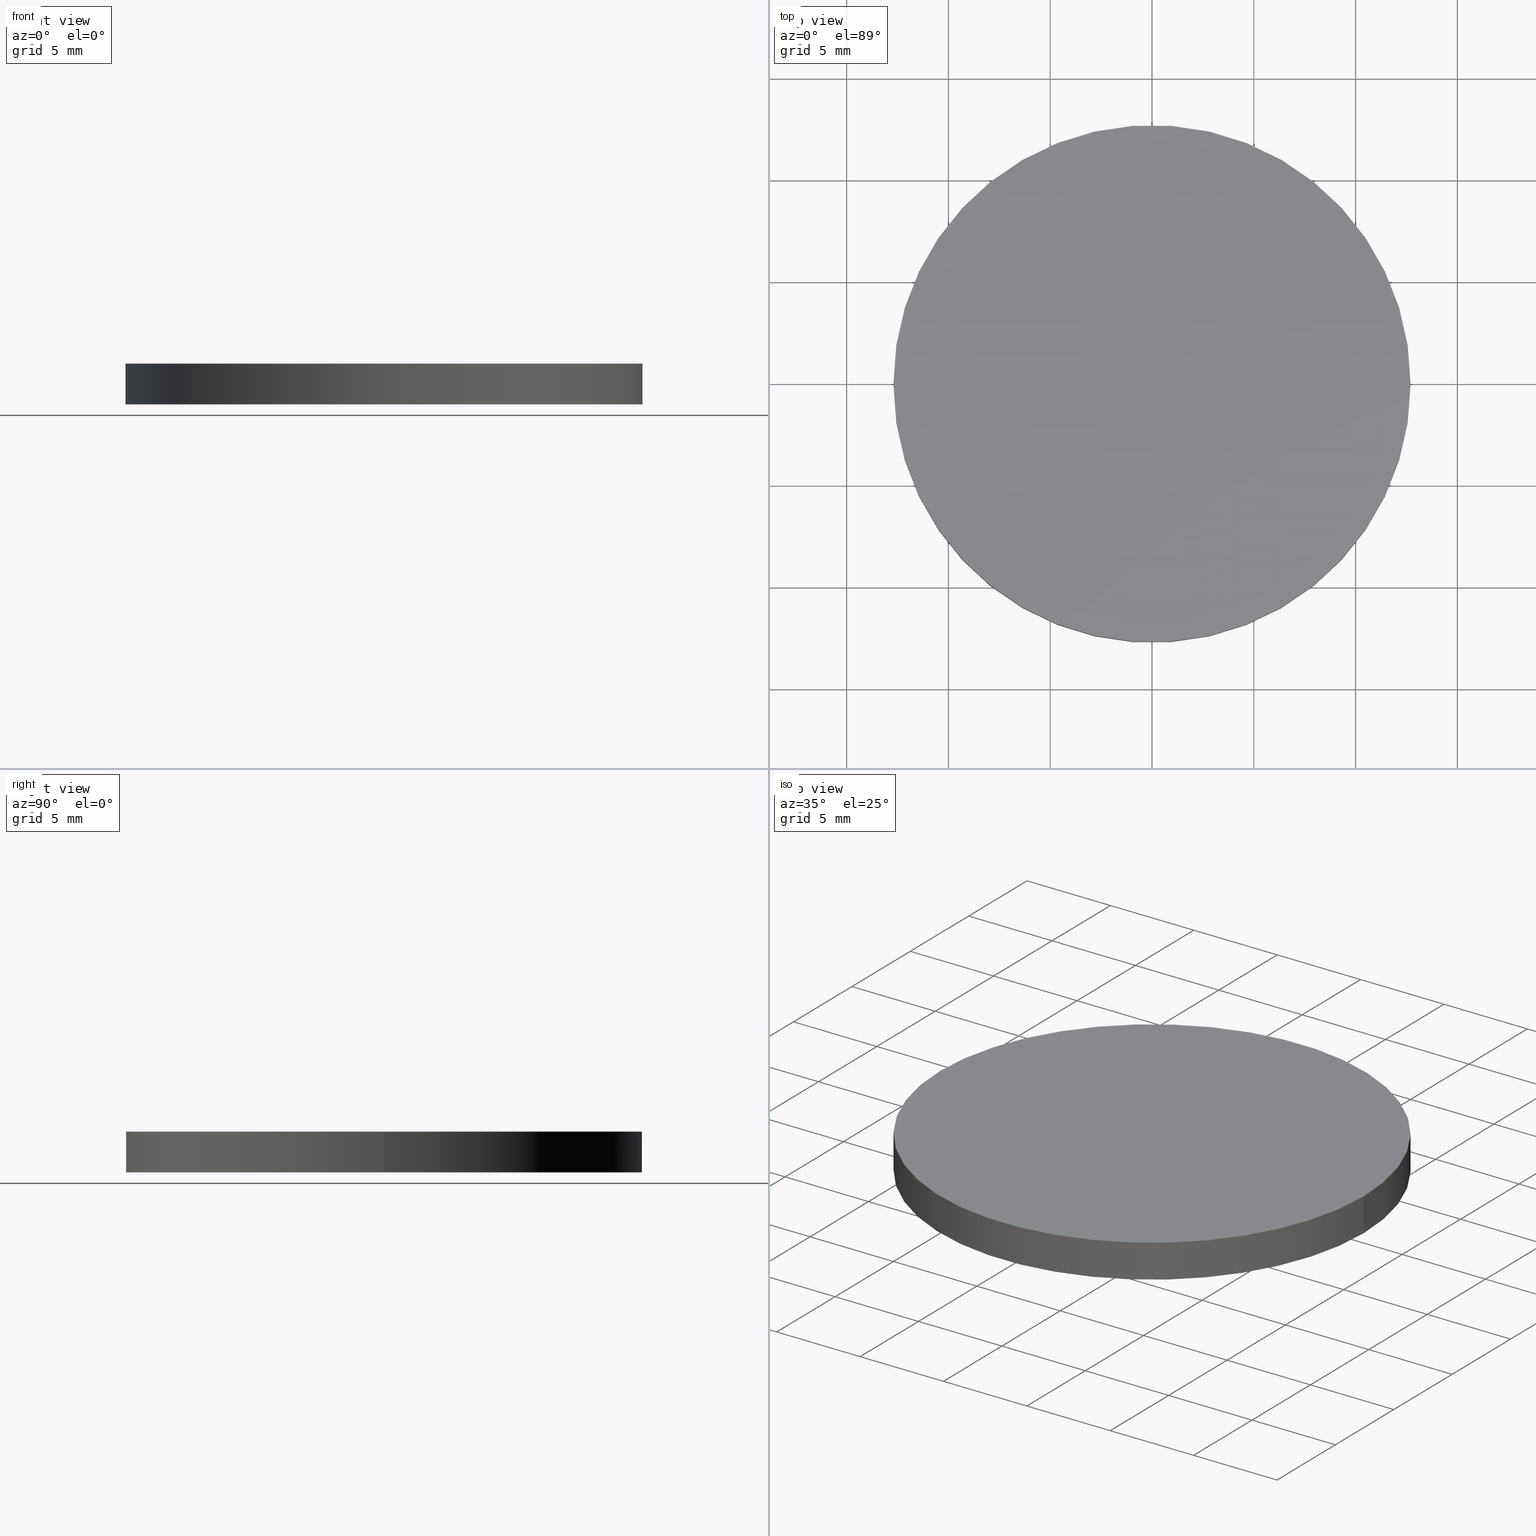
[diagram: canonical four-view strip — front | top / right | iso, engineering-drawing reading convention]
A machine part, canonical four-view strip (front | top / right | iso — engineering-drawing reading convention). The complete STEP part file that produces these views, byte-faithful:
ISO-10303-21;
HEADER;
FILE_DESCRIPTION (( 'STEP AP214' ),
    '1' );
FILE_NAME ('190166.STEP',
    '2019-07-18T08:32:23',
    ( 'user' ),
    ( '΢���й�' ),
    'SwSTEP 2.0',
    'SolidWorks 2016',
    '' );
FILE_SCHEMA (( 'AUTOMOTIVE_DESIGN' ));
ENDSEC;

DATA;
#1 = AXIS2_PLACEMENT_3D ( 'NONE', #58, #69, #83 ) ;
#2 = PRODUCT_DEFINITION_SHAPE ( 'NONE', 'NONE',  #122 ) ;
#3 = CLOSED_SHELL ( 'NONE', ( #131, #126, #105, #112 ) ) ;
#4 = UNCERTAINTY_MEASURE_WITH_UNIT (LENGTH_MEASURE( 1.000000000000000100E-005 ), #72, 'distance_accuracy_value', 'NONE');
#5 =( LENGTH_UNIT ( ) NAMED_UNIT ( * ) SI_UNIT ( .MILLI., .METRE. ) );
#6 = STYLED_ITEM ( 'NONE', ( #103 ), #20 ) ;
#7 = ORIENTED_EDGE ( 'NONE', *, *, #51, .T. ) ;
#8 = AXIS2_PLACEMENT_3D ( 'NONE', #13, #123, #49 ) ;
#9 = DIRECTION ( 'NONE',  ( 1.000000000000000000, 0.0000000000000000000, 0.0000000000000000000 ) ) ;
#10 = CARTESIAN_POINT ( 'NONE',  ( -12.69999999999999900, 0.0000000000000000000, 0.0000000000000000000 ) ) ;
#11 = CARTESIAN_POINT ( 'NONE',  ( 0.0000000000000000000, 0.0000000000000000000, 2.000000000000000000 ) ) ;
#12 =( NAMED_UNIT ( * ) PLANE_ANGLE_UNIT ( ) SI_UNIT ( $, .RADIAN. ) );
#13 = CARTESIAN_POINT ( 'NONE',  ( 0.0000000000000000000, 0.0000000000000000000, 0.0000000000000000000 ) ) ;
#14 = DIRECTION ( 'NONE',  ( -0.0000000000000000000, -0.0000000000000000000, -1.000000000000000000 ) ) ;
#15 = FACE_OUTER_BOUND ( 'NONE', #76, .T. ) ;
#16 = CARTESIAN_POINT ( 'NONE',  ( 0.0000000000000000000, 0.0000000000000000000, 2.000000000000000000 ) ) ;
#17 = CARTESIAN_POINT ( 'NONE',  ( 12.69999999999999900, 1.555301434917138400E-015, 2.000000000000000000 ) ) ;
#18 = EDGE_CURVE ( 'NONE', #66, #60, #74, .T. ) ;
#19 = DIRECTION ( 'NONE',  ( -1.000000000000000000, 0.0000000000000000000, 0.0000000000000000000 ) ) ;
#20 = MANIFOLD_SOLID_BREP ( '͹̨-����1', #3 ) ;
#21 = APPLICATION_CONTEXT ( 'automotive_design' ) ;
#22 = AXIS2_PLACEMENT_3D ( 'NONE', #11, #120, #129 ) ;
#23 = VERTEX_POINT ( 'NONE', #70 ) ;
#24 = CIRCLE ( 'NONE', #77, 12.69999999999999900 ) ;
#25 = EDGE_LOOP ( 'NONE', ( #119, #139 ) ) ;
#26 = PLANE ( 'NONE',  #1 ) ;
#27 = DIRECTION ( 'NONE',  ( 0.0000000000000000000, 0.0000000000000000000, 1.000000000000000000 ) ) ;
#28 = UNCERTAINTY_MEASURE_WITH_UNIT (LENGTH_MEASURE( 1.000000000000000100E-005 ), #5, 'distance_accuracy_value', 'NONE');
#29 = ORIENTED_EDGE ( 'NONE', *, *, #101, .T. ) ;
#30 = CIRCLE ( 'NONE', #88, 12.69999999999999900 ) ;
#31 = APPLICATION_PROTOCOL_DEFINITION ( 'draft international standard', 'automotive_design', 1998, #21 ) ;
#32 = DIRECTION ( 'NONE',  ( -0.0000000000000000000, -0.0000000000000000000, -1.000000000000000000 ) ) ;
#33 = CYLINDRICAL_SURFACE ( 'NONE', #89, 12.69999999999999900 ) ;
#34 =( NAMED_UNIT ( * ) PLANE_ANGLE_UNIT ( ) SI_UNIT ( $, .RADIAN. ) );
#35 = MECHANICAL_DESIGN_GEOMETRIC_PRESENTATION_REPRESENTATION (  '', ( #6 ), #71 ) ;
#36 = DIRECTION ( 'NONE',  ( 0.0000000000000000000, 0.0000000000000000000, 1.000000000000000000 ) ) ;
#37 = APPLICATION_CONTEXT ( 'automotive_design' ) ;
#38 = PRODUCT_DEFINITION_CONTEXT ( 'detailed design', #37, 'design' ) ;
#39 =( NAMED_UNIT ( * ) SI_UNIT ( $, .STERADIAN. ) SOLID_ANGLE_UNIT ( ) );
#40 = PRESENTATION_LAYER_ASSIGNMENT (  '', '', ( #48 ) ) ;
#41 = CIRCLE ( 'NONE', #56, 12.69999999999999900 ) ;
#42 = EDGE_CURVE ( 'NONE', #23, #60, #41, .T. ) ;
#43 = EDGE_CURVE ( 'NONE', #60, #23, #30, .T. ) ;
#44 = VECTOR ( 'NONE', #32, 1000.000000000000000 ) ;
#45 = DIRECTION ( 'NONE',  ( 0.0000000000000000000, 0.0000000000000000000, 1.000000000000000000 ) ) ;
#46 = SURFACE_STYLE_USAGE ( .BOTH. , #82 ) ;
#47 = ORIENTED_EDGE ( 'NONE', *, *, #18, .T. ) ;
#48 = STYLED_ITEM ( 'NONE', ( #98 ), #94 ) ;
#49 = DIRECTION ( 'NONE',  ( 1.000000000000000000, 0.0000000000000000000, 0.0000000000000000000 ) ) ;
#50 = CARTESIAN_POINT ( 'NONE',  ( -12.69999999999999900, 0.0000000000000000000, 2.000000000000000000 ) ) ;
#51 = EDGE_CURVE ( 'NONE', #80, #23, #102, .T. ) ;
#52 = ORIENTED_EDGE ( 'NONE', *, *, #61, .T. ) ;
#53 = FILL_AREA_STYLE ('',( #121 ) ) ;
#54 = ORIENTED_EDGE ( 'NONE', *, *, #18, .F. ) ;
#55 = UNCERTAINTY_MEASURE_WITH_UNIT (LENGTH_MEASURE( 1.000000000000000100E-005 ), #118, 'distance_accuracy_value', 'NONE');
#56 = AXIS2_PLACEMENT_3D ( 'NONE', #137, #59, #128 ) ;
#57 =( GEOMETRIC_REPRESENTATION_CONTEXT ( 3 ) GLOBAL_UNCERTAINTY_ASSIGNED_CONTEXT ( ( #4 ) ) GLOBAL_UNIT_ASSIGNED_CONTEXT ( ( #72, #12, #63 ) ) REPRESENTATION_CONTEXT ( 'NONE', 'WORKASPACE' ) );
#58 = CARTESIAN_POINT ( 'NONE',  ( 0.0000000000000000000, 0.0000000000000000000, 2.000000000000000000 ) ) ;
#59 = DIRECTION ( 'NONE',  ( 0.0000000000000000000, 0.0000000000000000000, 1.000000000000000000 ) ) ;
#60 = VERTEX_POINT ( 'NONE', #10 ) ;
#61 = EDGE_CURVE ( 'NONE', #80, #66, #104, .T. ) ;
#62 = FACE_OUTER_BOUND ( 'NONE', #114, .T. ) ;
#63 =( NAMED_UNIT ( * ) SI_UNIT ( $, .STERADIAN. ) SOLID_ANGLE_UNIT ( ) );
#64 = COLOUR_RGB ( '',1.000000000000000000, 1.000000000000000000, 1.000000000000000000 ) ;
#65 = CYLINDRICAL_SURFACE ( 'NONE', #22, 12.69999999999999900 ) ;
#66 = VERTEX_POINT ( 'NONE', #50 ) ;
#67 = AXIS2_PLACEMENT_3D ( 'NONE', #68, #36, #140 ) ;
#68 = CARTESIAN_POINT ( 'NONE',  ( 0.0000000000000000000, 0.0000000000000000000, 0.0000000000000000000 ) ) ;
#69 = DIRECTION ( 'NONE',  ( 0.0000000000000000000, 0.0000000000000000000, 1.000000000000000000 ) ) ;
#70 = CARTESIAN_POINT ( 'NONE',  ( 12.69999999999999900, 1.555301434917138400E-015, 0.0000000000000000000 ) ) ;
#71 =( GEOMETRIC_REPRESENTATION_CONTEXT ( 3 ) GLOBAL_UNCERTAINTY_ASSIGNED_CONTEXT ( ( #55 ) ) GLOBAL_UNIT_ASSIGNED_CONTEXT ( ( #118, #34, #107 ) ) REPRESENTATION_CONTEXT ( 'NONE', 'WORKASPACE' ) );
#72 =( LENGTH_UNIT ( ) NAMED_UNIT ( * ) SI_UNIT ( .MILLI., .METRE. ) );
#73 = FILL_AREA_STYLE_COLOUR ( '', #109 ) ;
#74 = LINE ( 'NONE', #97, #44 ) ;
#75 = PRODUCT_DEFINITION_FORMATION_WITH_SPECIFIED_SOURCE ( '�κ�', '', #87, .NOT_KNOWN. ) ;
#76 = EDGE_LOOP ( 'NONE', ( #29, #52 ) ) ;
#77 = AXIS2_PLACEMENT_3D ( 'NONE', #16, #78, #9 ) ;
#78 = DIRECTION ( 'NONE',  ( 0.0000000000000000000, 0.0000000000000000000, 1.000000000000000000 ) ) ;
#79 = SURFACE_STYLE_FILL_AREA ( #100 ) ;
#80 = VERTEX_POINT ( 'NONE', #17 ) ;
#81 = FACE_OUTER_BOUND ( 'NONE', #25, .T. ) ;
#82 = SURFACE_SIDE_STYLE ('',( #134 ) ) ;
#83 = DIRECTION ( 'NONE',  ( 1.000000000000000000, 0.0000000000000000000, -0.0000000000000000000 ) ) ;
#84 = SURFACE_STYLE_USAGE ( .BOTH. , #132 ) ;
#85 = ORIENTED_EDGE ( 'NONE', *, *, #42, .T. ) ;
#86 = PRODUCT_RELATED_PRODUCT_CATEGORY ( 'part', '', ( #87 ) ) ;
#87 = PRODUCT ( '190166', '190166', '', ( #108 ) ) ;
#88 = AXIS2_PLACEMENT_3D ( 'NONE', #106, #27, #95 ) ;
#89 = AXIS2_PLACEMENT_3D ( 'NONE', #138, #14, #19 ) ;
#90 = ORIENTED_EDGE ( 'NONE', *, *, #43, .T. ) ;
#91 = PRESENTATION_LAYER_ASSIGNMENT (  '', '', ( #6 ) ) ;
#92 = AXIS2_PLACEMENT_3D ( 'NONE', #127, #45, #116 ) ;
#93 = PLANE ( 'NONE',  #67 ) ;
#94 = ADVANCED_BREP_SHAPE_REPRESENTATION ( '190166', ( #20, #8 ), #113 ) ;
#95 = DIRECTION ( 'NONE',  ( 1.000000000000000000, 0.0000000000000000000, 0.0000000000000000000 ) ) ;
#96 = DIRECTION ( 'NONE',  ( -0.0000000000000000000, -0.0000000000000000000, -1.000000000000000000 ) ) ;
#97 = CARTESIAN_POINT ( 'NONE',  ( -12.69999999999999900, 0.0000000000000000000, 2.000000000000000000 ) ) ;
#98 = PRESENTATION_STYLE_ASSIGNMENT (( #84 ) ) ;
#99 = APPLICATION_PROTOCOL_DEFINITION ( 'draft international standard', 'automotive_design', 1998, #37 ) ;
#100 = FILL_AREA_STYLE ('',( #73 ) ) ;
#101 = EDGE_CURVE ( 'NONE', #66, #80, #24, .T. ) ;
#102 = LINE ( 'NONE', #117, #130 ) ;
#103 = PRESENTATION_STYLE_ASSIGNMENT (( #46 ) ) ;
#104 = CIRCLE ( 'NONE', #92, 12.69999999999999900 ) ;
#105 = ADVANCED_FACE ( 'NONE', ( #15 ), #26, .T. ) ;
#106 = CARTESIAN_POINT ( 'NONE',  ( 0.0000000000000000000, 0.0000000000000000000, 0.0000000000000000000 ) ) ;
#107 =( NAMED_UNIT ( * ) SI_UNIT ( $, .STERADIAN. ) SOLID_ANGLE_UNIT ( ) );
#108 = PRODUCT_CONTEXT ( 'NONE', #21, 'mechanical' ) ;
#109 = COLOUR_RGB ( '',1.000000000000000000, 1.000000000000000000, 1.000000000000000000 ) ;
#110 = EDGE_LOOP ( 'NONE', ( #135, #7, #85, #54 ) ) ;
#111 = MECHANICAL_DESIGN_GEOMETRIC_PRESENTATION_REPRESENTATION (  '', ( #48 ), #57 ) ;
#112 = ADVANCED_FACE ( 'NONE', ( #81 ), #93, .F. ) ;
#113 =( GEOMETRIC_REPRESENTATION_CONTEXT ( 3 ) GLOBAL_UNCERTAINTY_ASSIGNED_CONTEXT ( ( #28 ) ) GLOBAL_UNIT_ASSIGNED_CONTEXT ( ( #5, #133, #39 ) ) REPRESENTATION_CONTEXT ( 'NONE', 'WORKASPACE' ) );
#114 = EDGE_LOOP ( 'NONE', ( #125, #124, #47, #90 ) ) ;
#115 = FACE_OUTER_BOUND ( 'NONE', #110, .T. ) ;
#116 = DIRECTION ( 'NONE',  ( 1.000000000000000000, 0.0000000000000000000, 0.0000000000000000000 ) ) ;
#117 = CARTESIAN_POINT ( 'NONE',  ( 12.69999999999999900, 1.555301434917138400E-015, 2.000000000000000000 ) ) ;
#118 =( LENGTH_UNIT ( ) NAMED_UNIT ( * ) SI_UNIT ( .MILLI., .METRE. ) );
#119 = ORIENTED_EDGE ( 'NONE', *, *, #43, .F. ) ;
#120 = DIRECTION ( 'NONE',  ( -0.0000000000000000000, -0.0000000000000000000, -1.000000000000000000 ) ) ;
#121 = FILL_AREA_STYLE_COLOUR ( '', #64 ) ;
#122 = PRODUCT_DEFINITION ( 'δ֪', '', #75, #38 ) ;
#123 = DIRECTION ( 'NONE',  ( 0.0000000000000000000, 0.0000000000000000000, 1.000000000000000000 ) ) ;
#124 = ORIENTED_EDGE ( 'NONE', *, *, #101, .F. ) ;
#125 = ORIENTED_EDGE ( 'NONE', *, *, #51, .F. ) ;
#126 = ADVANCED_FACE ( 'NONE', ( #62 ), #65, .T. ) ;
#127 = CARTESIAN_POINT ( 'NONE',  ( 0.0000000000000000000, 0.0000000000000000000, 2.000000000000000000 ) ) ;
#128 = DIRECTION ( 'NONE',  ( 1.000000000000000000, 0.0000000000000000000, 0.0000000000000000000 ) ) ;
#129 = DIRECTION ( 'NONE',  ( -1.000000000000000000, 0.0000000000000000000, 0.0000000000000000000 ) ) ;
#130 = VECTOR ( 'NONE', #96, 1000.000000000000000 ) ;
#131 = ADVANCED_FACE ( 'NONE', ( #115 ), #33, .T. ) ;
#132 = SURFACE_SIDE_STYLE ('',( #79 ) ) ;
#133 =( NAMED_UNIT ( * ) PLANE_ANGLE_UNIT ( ) SI_UNIT ( $, .RADIAN. ) );
#134 = SURFACE_STYLE_FILL_AREA ( #53 ) ;
#135 = ORIENTED_EDGE ( 'NONE', *, *, #61, .F. ) ;
#136 = SHAPE_DEFINITION_REPRESENTATION ( #2, #94 ) ;
#137 = CARTESIAN_POINT ( 'NONE',  ( 0.0000000000000000000, 0.0000000000000000000, 0.0000000000000000000 ) ) ;
#138 = CARTESIAN_POINT ( 'NONE',  ( 0.0000000000000000000, 0.0000000000000000000, 2.000000000000000000 ) ) ;
#139 = ORIENTED_EDGE ( 'NONE', *, *, #42, .F. ) ;
#140 = DIRECTION ( 'NONE',  ( 1.000000000000000000, 0.0000000000000000000, -0.0000000000000000000 ) ) ;
ENDSEC;
END-ISO-10303-21;
